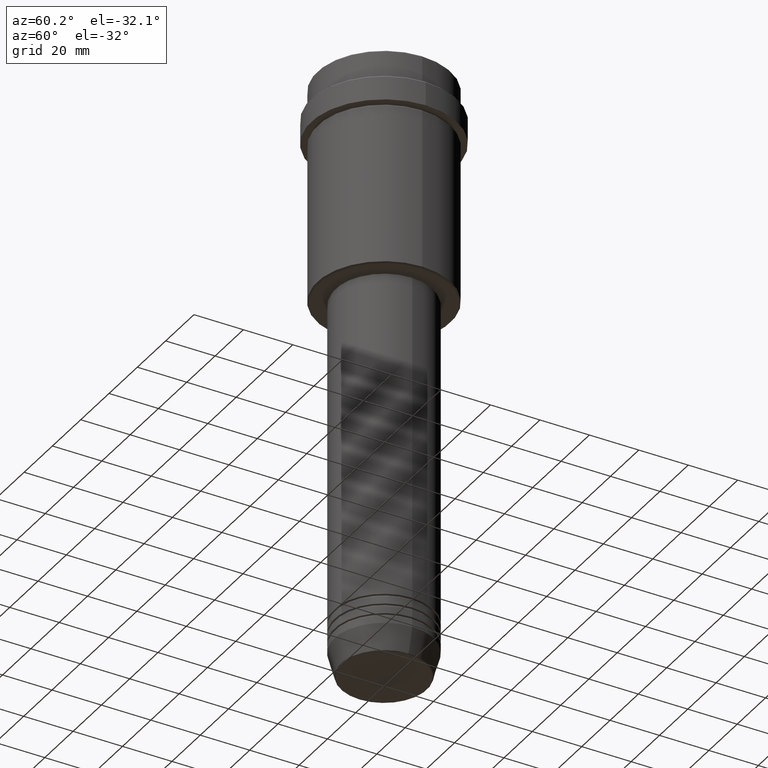
[diagram: clean part render]
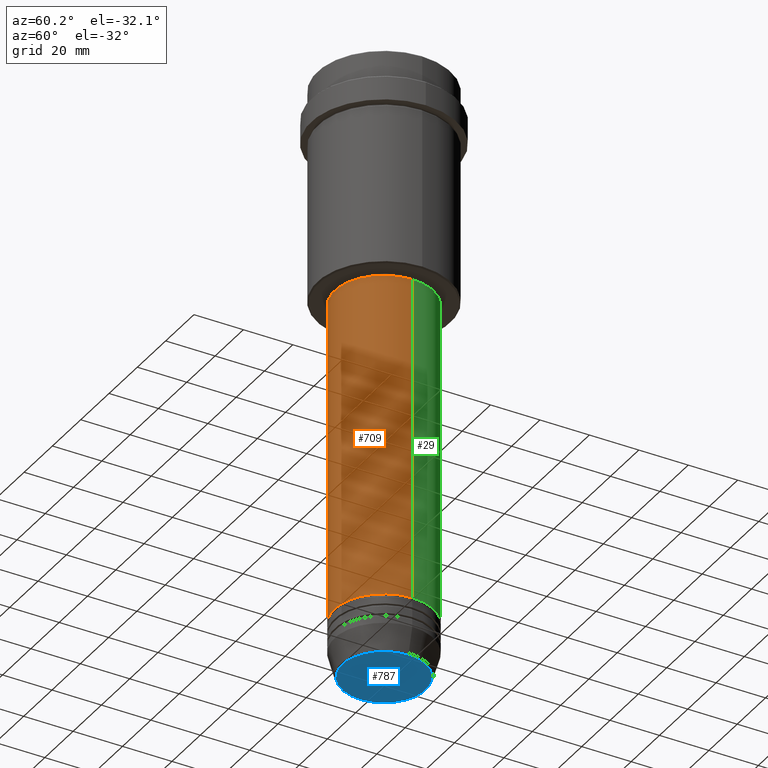
[diagram: same view with three faces highlighted in distinct colors, each labeled with its STEP entity id]
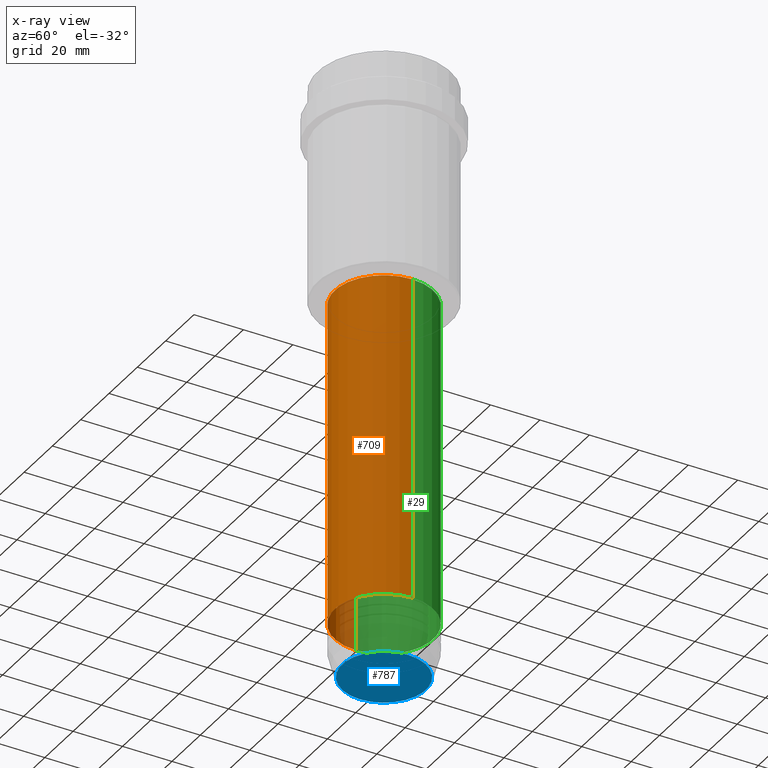
[diagram: x-ray of the same camera — body ghosted, the three highlighted faces saturated]
A machine part, auxiliary view with three faces highlighted in distinct colors.
The next image is the same camera in x-ray (body ghosted, the three faces saturated) — at least one of them is partly hidden behind the body in this view.
Their STEP definitions:

[orange] entity #709 — the highlighted cylindrical surface (partial cylindrical patch) has radius 20 mm, axis along (-0, -0, 1).
#3 = VERTEX_POINT ( 'NONE', #1188 ) ;
#59 = CARTESIAN_POINT ( 'NONE',  ( -20.00000000000000000, 2.449293598294706513E-15, -89.00000000000000000 ) ) ;
#195 = CARTESIAN_POINT ( 'NONE',  ( 20.00000000000000000, 0.000000000000000000, -89.00000000000000000 ) ) ;
#197 = LINE ( 'NONE', #1163, #359 ) ;
#225 = AXIS2_PLACEMENT_3D ( 'NONE', #1241, #1023, #1138 ) ;
#311 = CARTESIAN_POINT ( 'NONE',  ( 20.00000000000000000, 0.000000000000000000, 0.000000000000000000 ) ) ;
#313 = CARTESIAN_POINT ( 'NONE',  ( -20.00000000000000000, 2.449293598294706513E-15, -220.9999999999998863 ) ) ;
#335 = VERTEX_POINT ( 'NONE', #59 ) ;
#341 = CYLINDRICAL_SURFACE ( 'NONE', #1319, 20.00000000000000000 ) ;
#359 = VECTOR ( 'NONE', #1063, 1000.000000000000000 ) ;
#447 = ORIENTED_EDGE ( 'NONE', *, *, #937, .T. ) ;
#523 = EDGE_CURVE ( 'NONE', #595, #3, #584, .T. ) ;
#541 = DIRECTION ( 'NONE',  ( -0.000000000000000000, -0.000000000000000000, 1.000000000000000000 ) ) ;
#584 = CIRCLE ( 'NONE', #652, 20.00000000000000000 ) ;
#592 = EDGE_CURVE ( 'NONE', #595, #335, #197, .T. ) ;
#595 = VERTEX_POINT ( 'NONE', #313 ) ;
#652 = AXIS2_PLACEMENT_3D ( 'NONE', #1268, #954, #959 ) ;
#709 = ADVANCED_FACE ( 'NONE', ( #897 ), #341, .T. ) ;
#856 = EDGE_CURVE ( 'NONE', #335, #1308, #1348, .T. ) ;
#897 = FACE_OUTER_BOUND ( 'NONE', #1395, .T. ) ;
#931 = VECTOR ( 'NONE', #1055, 1000.000000000000000 ) ;
#937 = EDGE_CURVE ( 'NONE', #3, #1308, #1288, .T. ) ;
#954 = DIRECTION ( 'NONE',  ( -0.000000000000000000, -0.000000000000000000, 1.000000000000000000 ) ) ;
#959 = DIRECTION ( 'NONE',  ( 1.000000000000000000, 0.000000000000000000, 0.000000000000000000 ) ) ;
#977 = ORIENTED_EDGE ( 'NONE', *, *, #523, .T. ) ;
#1023 = DIRECTION ( 'NONE',  ( -0.000000000000000000, -0.000000000000000000, 1.000000000000000000 ) ) ;
#1032 = ORIENTED_EDGE ( 'NONE', *, *, #592, .F. ) ;
#1055 = DIRECTION ( 'NONE',  ( -0.000000000000000000, -0.000000000000000000, 1.000000000000000000 ) ) ;
#1063 = DIRECTION ( 'NONE',  ( -0.000000000000000000, -0.000000000000000000, 1.000000000000000000 ) ) ;
#1100 = DIRECTION ( 'NONE',  ( 1.000000000000000000, 0.000000000000000000, 0.000000000000000000 ) ) ;
#1138 = DIRECTION ( 'NONE',  ( 1.000000000000000000, 0.000000000000000000, 0.000000000000000000 ) ) ;
#1163 = CARTESIAN_POINT ( 'NONE',  ( -20.00000000000000000, 2.449293598294706513E-15, 0.000000000000000000 ) ) ;
#1188 = CARTESIAN_POINT ( 'NONE',  ( 20.00000000000000000, 0.000000000000000000, -220.9999999999998863 ) ) ;
#1197 = ORIENTED_EDGE ( 'NONE', *, *, #856, .F. ) ;
#1202 = CARTESIAN_POINT ( 'NONE',  ( 0.000000000000000000, 0.000000000000000000, 0.000000000000000000 ) ) ;
#1241 = CARTESIAN_POINT ( 'NONE',  ( 0.000000000000000000, 0.000000000000000000, -89.00000000000000000 ) ) ;
#1268 = CARTESIAN_POINT ( 'NONE',  ( 0.000000000000000000, 0.000000000000000000, -220.9999999999998863 ) ) ;
#1288 = LINE ( 'NONE', #311, #931 ) ;
#1308 = VERTEX_POINT ( 'NONE', #195 ) ;
#1319 = AXIS2_PLACEMENT_3D ( 'NONE', #1202, #541, #1100 ) ;
#1348 = CIRCLE ( 'NONE', #225, 20.00000000000000000 ) ;
#1395 = EDGE_LOOP ( 'NONE', ( #1032, #977, #447, #1197 ) ) ;

[blue] entity #787 — the highlighted planar face has unit normal (0, -0, 1).
#37 = CIRCLE ( 'NONE', #176, 16.93684458169928675 ) ;
#46 = FACE_OUTER_BOUND ( 'NONE', #568, .T. ) ;
#51 = DIRECTION ( 'NONE',  ( 0.000000000000000000, -0.000000000000000000, 1.000000000000000000 ) ) ;
#105 = AXIS2_PLACEMENT_3D ( 'NONE', #898, #1005, #353 ) ;
#176 = AXIS2_PLACEMENT_3D ( 'NONE', #478, #490, #1242 ) ;
#180 = AXIS2_PLACEMENT_3D ( 'NONE', #386, #51, #825 ) ;
#205 = EDGE_CURVE ( 'NONE', #899, #276, #357, .T. ) ;
#276 = VERTEX_POINT ( 'NONE', #874 ) ;
#353 = DIRECTION ( 'NONE',  ( 1.000000000000000000, 0.000000000000000000, 0.000000000000000000 ) ) ;
#357 = CIRCLE ( 'NONE', #105, 16.93684458169928675 ) ;
#385 = EDGE_CURVE ( 'NONE', #276, #899, #37, .T. ) ;
#386 = CARTESIAN_POINT ( 'NONE',  ( 0.000000000000000000, 0.000000000000000000, -243.0000000000000000 ) ) ;
#413 = ORIENTED_EDGE ( 'NONE', *, *, #205, .T. ) ;
#478 = CARTESIAN_POINT ( 'NONE',  ( 0.000000000000000000, 0.000000000000000000, -243.0000000000000000 ) ) ;
#490 = DIRECTION ( 'NONE',  ( 0.000000000000000000, 0.000000000000000000, -1.000000000000000000 ) ) ;
#568 = EDGE_LOOP ( 'NONE', ( #413, #871 ) ) ;
#686 = PLANE ( 'NONE',  #180 ) ;
#787 = ADVANCED_FACE ( 'NONE', ( #46 ), #686, .F. ) ;
#825 = DIRECTION ( 'NONE',  ( 1.000000000000000000, 0.000000000000000000, 0.000000000000000000 ) ) ;
#871 = ORIENTED_EDGE ( 'NONE', *, *, #385, .T. ) ;
#874 = CARTESIAN_POINT ( 'NONE',  ( -16.93684458169928675, 2.103738199747889592E-15, -243.0000000000000000 ) ) ;
#898 = CARTESIAN_POINT ( 'NONE',  ( 0.000000000000000000, 0.000000000000000000, -243.0000000000000000 ) ) ;
#899 = VERTEX_POINT ( 'NONE', #964 ) ;
#964 = CARTESIAN_POINT ( 'NONE',  ( 16.93684458169928675, 0.000000000000000000, -243.0000000000000000 ) ) ;
#1005 = DIRECTION ( 'NONE',  ( 0.000000000000000000, 0.000000000000000000, -1.000000000000000000 ) ) ;
#1242 = DIRECTION ( 'NONE',  ( 1.000000000000000000, 0.000000000000000000, 0.000000000000000000 ) ) ;

[green] entity #29 — the highlighted cylindrical surface (partial cylindrical patch) has radius 20 mm, axis along (-0, -0, 1).
#3 = VERTEX_POINT ( 'NONE', #1188 ) ;
#29 = ADVANCED_FACE ( 'NONE', ( #621 ), #628, .T. ) ;
#32 = ORIENTED_EDGE ( 'NONE', *, *, #937, .F. ) ;
#59 = CARTESIAN_POINT ( 'NONE',  ( -20.00000000000000000, 2.449293598294706513E-15, -89.00000000000000000 ) ) ;
#101 = DIRECTION ( 'NONE',  ( 1.000000000000000000, 0.000000000000000000, 0.000000000000000000 ) ) ;
#179 = CIRCLE ( 'NONE', #1203, 20.00000000000000000 ) ;
#195 = CARTESIAN_POINT ( 'NONE',  ( 20.00000000000000000, 0.000000000000000000, -89.00000000000000000 ) ) ;
#197 = LINE ( 'NONE', #1163, #359 ) ;
#220 = EDGE_CURVE ( 'NONE', #1308, #335, #1039, .T. ) ;
#249 = DIRECTION ( 'NONE',  ( -0.000000000000000000, -0.000000000000000000, 1.000000000000000000 ) ) ;
#295 = EDGE_LOOP ( 'NONE', ( #866, #809, #409, #32 ) ) ;
#311 = CARTESIAN_POINT ( 'NONE',  ( 20.00000000000000000, 0.000000000000000000, 0.000000000000000000 ) ) ;
#313 = CARTESIAN_POINT ( 'NONE',  ( -20.00000000000000000, 2.449293598294706513E-15, -220.9999999999998863 ) ) ;
#335 = VERTEX_POINT ( 'NONE', #59 ) ;
#336 = AXIS2_PLACEMENT_3D ( 'NONE', #1226, #249, #1343 ) ;
#359 = VECTOR ( 'NONE', #1063, 1000.000000000000000 ) ;
#400 = CARTESIAN_POINT ( 'NONE',  ( 0.000000000000000000, 0.000000000000000000, 0.000000000000000000 ) ) ;
#409 = ORIENTED_EDGE ( 'NONE', *, *, #220, .F. ) ;
#462 = EDGE_CURVE ( 'NONE', #3, #595, #179, .T. ) ;
#592 = EDGE_CURVE ( 'NONE', #595, #335, #197, .T. ) ;
#595 = VERTEX_POINT ( 'NONE', #313 ) ;
#621 = FACE_OUTER_BOUND ( 'NONE', #295, .T. ) ;
#628 = CYLINDRICAL_SURFACE ( 'NONE', #810, 20.00000000000000000 ) ;
#809 = ORIENTED_EDGE ( 'NONE', *, *, #592, .T. ) ;
#810 = AXIS2_PLACEMENT_3D ( 'NONE', #400, #1291, #1307 ) ;
#866 = ORIENTED_EDGE ( 'NONE', *, *, #462, .T. ) ;
#931 = VECTOR ( 'NONE', #1055, 1000.000000000000000 ) ;
#937 = EDGE_CURVE ( 'NONE', #3, #1308, #1288, .T. ) ;
#1039 = CIRCLE ( 'NONE', #336, 20.00000000000000000 ) ;
#1051 = CARTESIAN_POINT ( 'NONE',  ( 0.000000000000000000, 0.000000000000000000, -220.9999999999998863 ) ) ;
#1055 = DIRECTION ( 'NONE',  ( -0.000000000000000000, -0.000000000000000000, 1.000000000000000000 ) ) ;
#1063 = DIRECTION ( 'NONE',  ( -0.000000000000000000, -0.000000000000000000, 1.000000000000000000 ) ) ;
#1163 = CARTESIAN_POINT ( 'NONE',  ( -20.00000000000000000, 2.449293598294706513E-15, 0.000000000000000000 ) ) ;
#1188 = CARTESIAN_POINT ( 'NONE',  ( 20.00000000000000000, 0.000000000000000000, -220.9999999999998863 ) ) ;
#1203 = AXIS2_PLACEMENT_3D ( 'NONE', #1051, #1383, #101 ) ;
#1226 = CARTESIAN_POINT ( 'NONE',  ( 0.000000000000000000, 0.000000000000000000, -89.00000000000000000 ) ) ;
#1288 = LINE ( 'NONE', #311, #931 ) ;
#1291 = DIRECTION ( 'NONE',  ( -0.000000000000000000, -0.000000000000000000, 1.000000000000000000 ) ) ;
#1307 = DIRECTION ( 'NONE',  ( 1.000000000000000000, 0.000000000000000000, 0.000000000000000000 ) ) ;
#1308 = VERTEX_POINT ( 'NONE', #195 ) ;
#1343 = DIRECTION ( 'NONE',  ( 1.000000000000000000, 0.000000000000000000, 0.000000000000000000 ) ) ;
#1383 = DIRECTION ( 'NONE',  ( -0.000000000000000000, -0.000000000000000000, 1.000000000000000000 ) ) ;